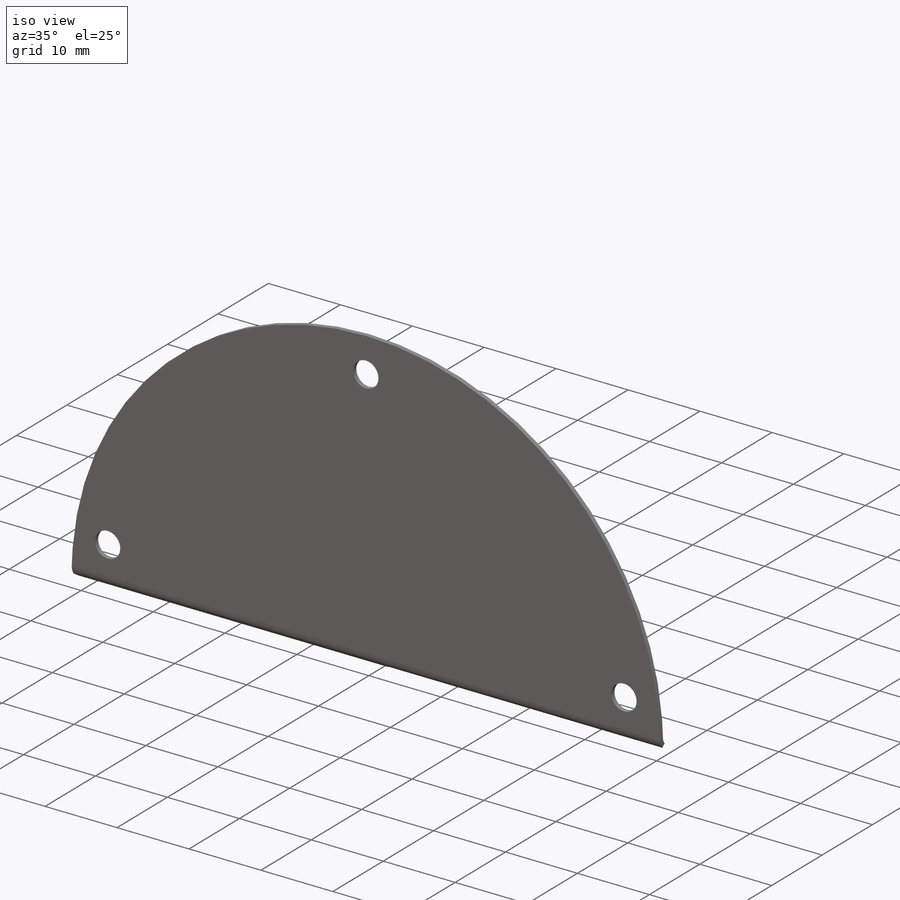
[diagram: iso view]
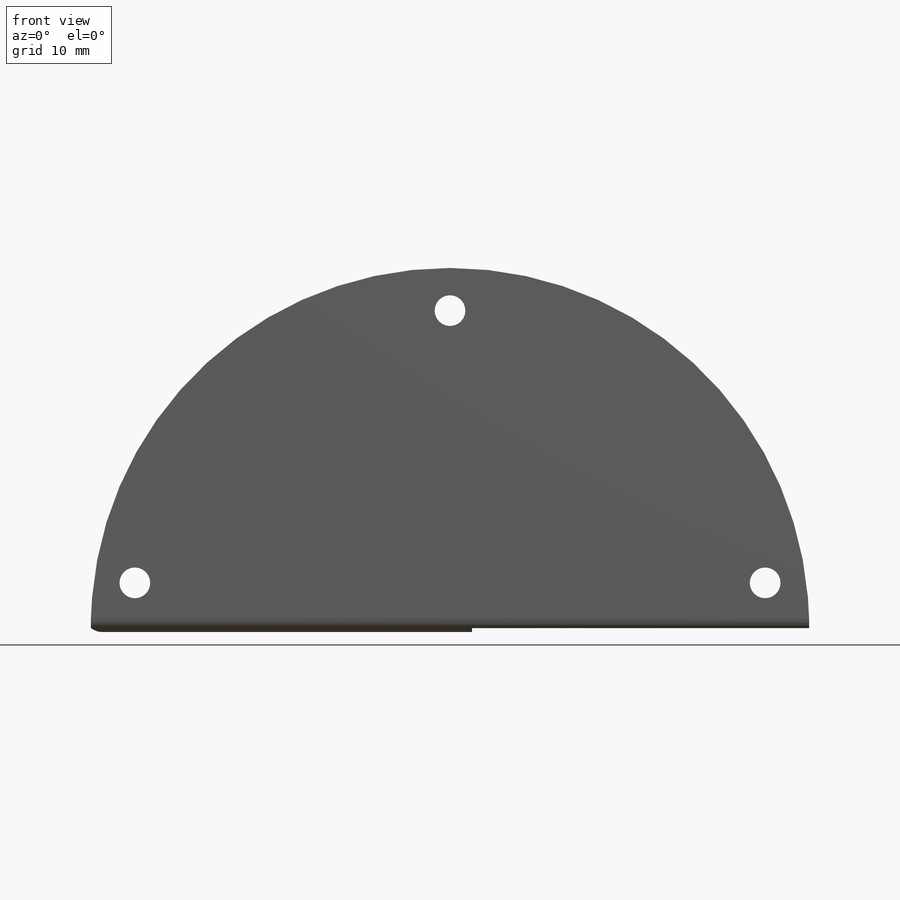
[diagram: front view]
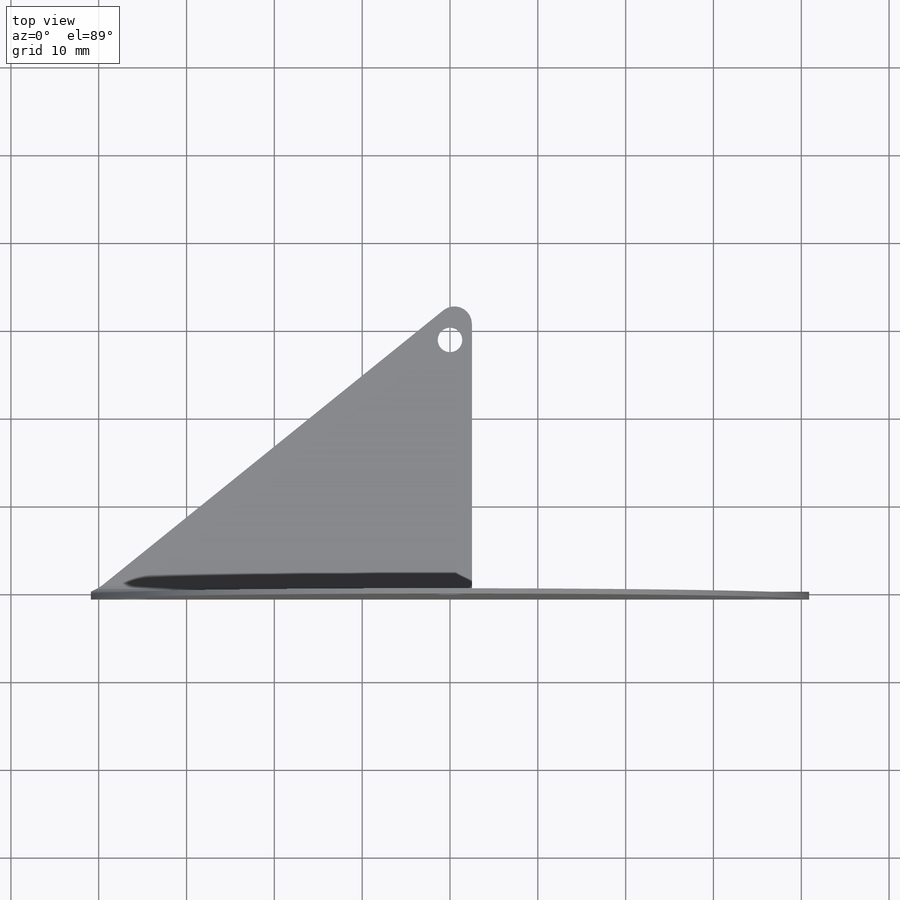
[diagram: top view]
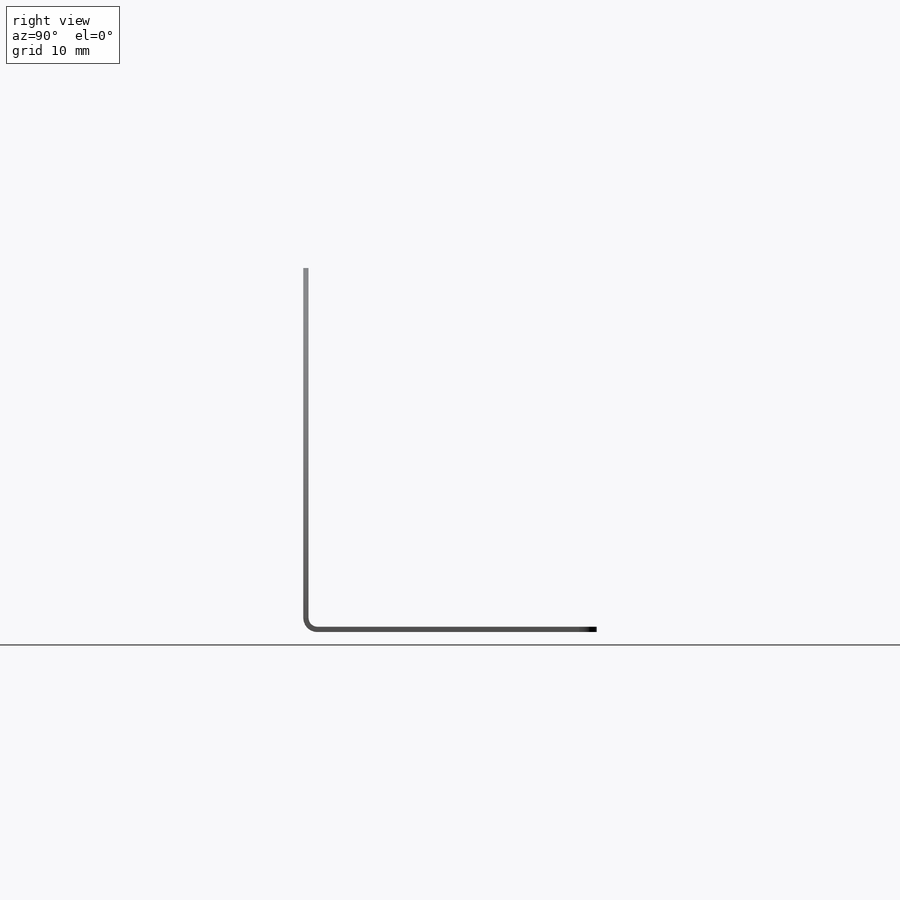
[diagram: right view]
SOLIDWORKS PART (.sldprt)
format: sldprt  version: not decoded by parser v0  size: 289,280 bytes
history: native  units: mm
features: sketch x20, sheet_metal_op x8, mirror x6, cut_extrude x3, material x1, plane x1 + 5 further entries (+12 scaffold rows collapsed; 1 parser-record rows omitted)
feature tree (57):
  scaffold x12  (default folders/planes/origin — collapsed)
  material  "Material <not specified>"
  sketch  "Sketch1"  dims[c1.D1=~65.599099mm c2.D1=1.0mm c2.D2=0.5 c2.D3=0.0mm c2.D6=500.0mm]
  sheet_metal_op  "Base-Flange1"
  sketch  "Sketch8"  dims[D1=43.4mm D2=35.0mm]
  sheet_metal_op  "Tab1"
  sketch  "Sketch14"
  parser-record x1  (decoder bookkeeping rows leaked as tree rows — omitted from the tree; the rows remain in map.json)
  sketch  "Sketch15"  dims[D1=28.0mm]
  cut_extrude  "Cut-Extrude1"  Depth=10mm
  plane  "Plane1"
  sketch  "Sketch16"  dims[D1=36.0mm]
  cut_extrude  "Cut-Extrude2"  Depth=10mm
  sketch  "Sketch17"  dims[D1=3.5mm D2=4.0mm D3=5.0mm]
  cut_extrude  "Cut-Extrude3"  Depth=10mm
  mirror  "Mirror1"
  sketch  "Bend-Lines1"
  sketch  "Bounding-Box1"
  sheet_metal_op  "Sheet-Metal(1)"
  "Flat-Pattern(1)"
  sketch  "Bend-Lines2"
  sketch  "Bounding-Box2"
  mirror  "Sheet-Metal(2)"
  sheet_metal_op  "Flat-Pattern(2)"
  sketch  "Bend-Lines3"
  sketch  "Bounding-Box3"
  mirror  "Sheet-Metal(3)"
  sheet_metal_op  "Flat-Pattern(2)"
  sketch  "Bend-Lines3"
  sketch  "Bounding-Box3"
  "Flatten-<SketchBend1>1"
  mirror  "Sheet-Metal(4)"
  sheet_metal_op  "Flat-Pattern(2)"
  sketch  "Bend-Lines3"
  sketch  "Bounding-Box3"
  "Flatten-<SketchBend1>1"
  mirror  "Sheet-Metal(5)"
  sheet_metal_op  "Flat-Pattern(2)"
  sketch  "Bend-Lines3"
  sketch  "Bounding-Box3"
  "Flatten-<SketchBend1>1"
  mirror  "Sheet-Metal(6)"
  sheet_metal_op  "Flat-Pattern(2)"
  sketch  "Bend-Lines3"
  sketch  "Bounding-Box3"
  "Flatten-<SketchBend1>1"
decode coverage: 8 of 37 modeling features carry decoded parameters; 5 rows unclassified (native names shown)
note: ~ marks probable driven/reference dimensions
note: suppression state not decoded; provenance and decode notes live in map.json
